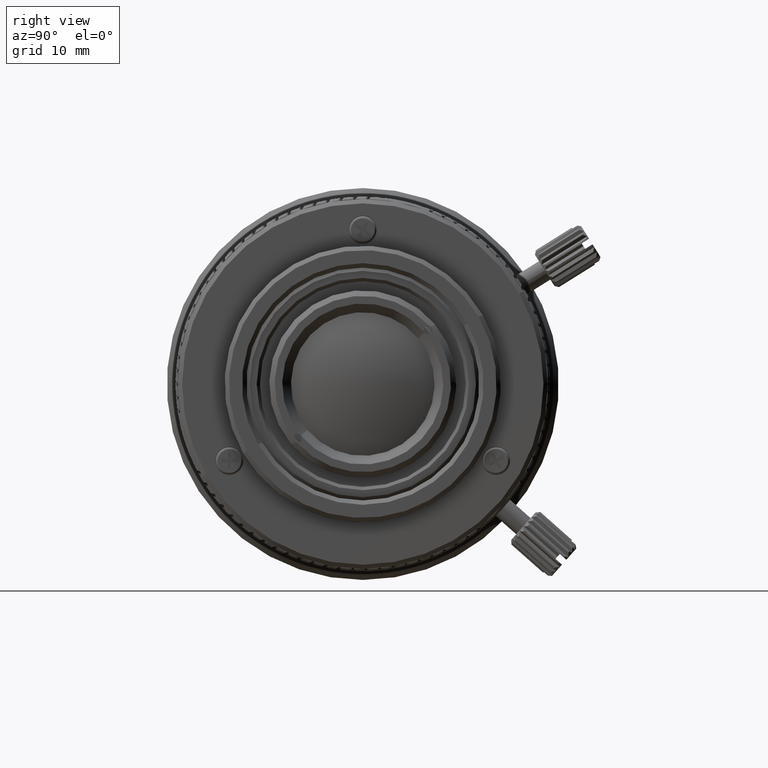
[diagram: clean part render]
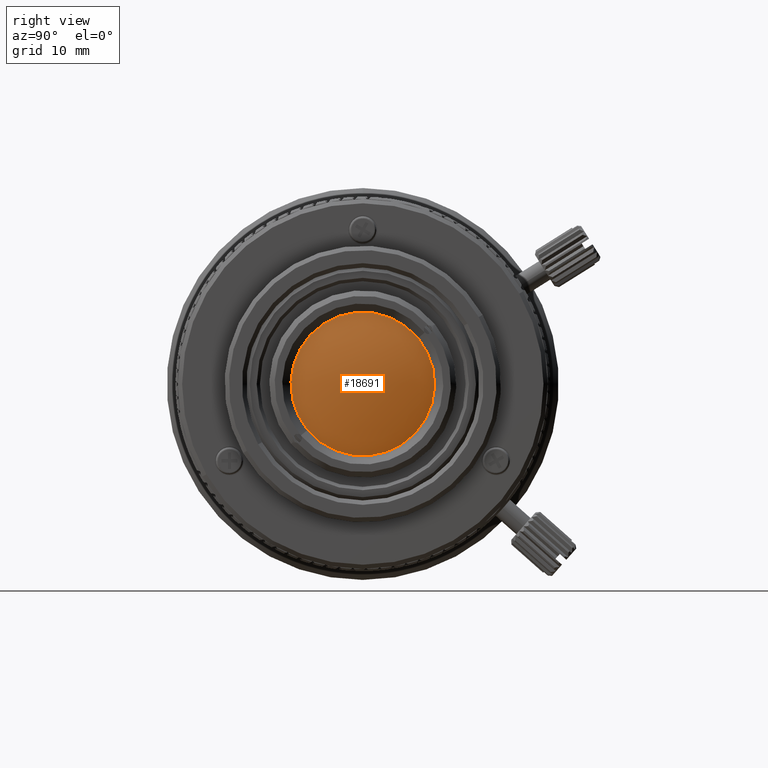
[diagram: same view with one face highlighted and labeled with its STEP entity id]
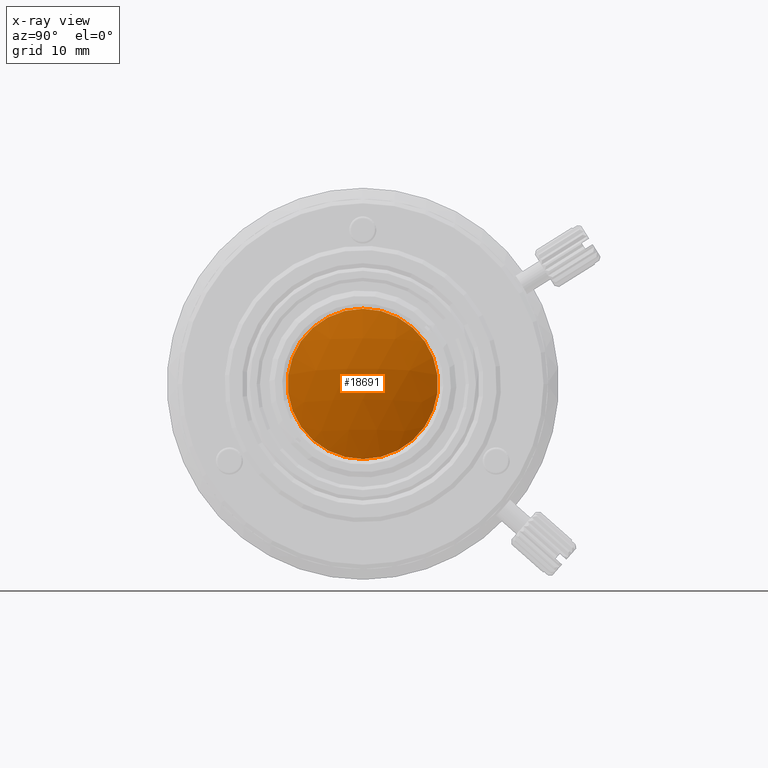
[diagram: x-ray of the same camera — body ghosted, the highlighted face saturated]
A machine part, right view. The second image highlights one B-rep face of the part: STEP entity #18691.
The next image is the same camera in x-ray: the body ghosted, the highlighted face saturated — about 0% of this face is hidden behind the body in this view.
In plain terms, the highlighted spherical surface has radius 20.838 mm.
Its self-contained STEP definition (entity closure, byte-faithful):
#294 = CARTESIAN_POINT ( 'NONE',  ( 25.05236668439066605, -4.199548021634699395E-26, 6.905955823439742680 ) ) ;
#2716 = VERTEX_POINT ( 'NONE', #4195 ) ;
#2982 = DIRECTION ( 'NONE',  ( 0.3333232157569925302, -1.164444844915242181E-15, -0.9428126186244101259 ) ) ;
#4195 = CARTESIAN_POINT ( 'NONE',  ( 25.05236668439066605, 8.514942143710034217E-16, -6.905955823439742680 ) ) ;
#4365 = AXIS2_PLACEMENT_3D ( 'NONE', #13982, #2982, #62574 ) ;
#5334 = CIRCLE ( 'NONE', #67921, 6.905955823439742680 ) ;
#10550 = EDGE_CURVE ( 'NONE', #2716, #61755, #14603, .T. ) ;
#13982 = CARTESIAN_POINT ( 'NONE',  ( 5.391999999999979920, 1.301042606940609916E-15, 1.864745337309942572E-14 ) ) ;
#14388 = CARTESIAN_POINT ( 'NONE',  ( 25.05236668439066605, -4.199548021634699395E-26, -8.239936512519225898E-19 ) ) ;
#14603 = CIRCLE ( 'NONE', #58398, 6.905955823439742680 ) ;
#17140 = ORIENTED_EDGE ( 'NONE', *, *, #40832, .F. ) ;
#18691 = ADVANCED_FACE ( 'NONE', ( #51574 ), #67674, .T. ) ;
#26446 = CARTESIAN_POINT ( 'NONE',  ( 25.05236668439066605, -4.199548021634699395E-26, -8.239936512519225898E-19 ) ) ;
#40832 = EDGE_CURVE ( 'NONE', #61755, #2716, #5334, .T. ) ;
#42938 = DIRECTION ( 'NONE',  ( 0.000000000000000000, 0.000000000000000000, 1.000000000000000000 ) ) ;
#48890 = DIRECTION ( 'NONE',  ( -1.000000000000000000, 0.000000000000000000, 0.000000000000000000 ) ) ;
#50346 = DIRECTION ( 'NONE',  ( -1.000000000000000000, 0.000000000000000000, 0.000000000000000000 ) ) ;
#51574 = FACE_OUTER_BOUND ( 'NONE', #57241, .T. ) ;
#57241 = EDGE_LOOP ( 'NONE', ( #17140, #62426 ) ) ;
#58398 = AXIS2_PLACEMENT_3D ( 'NONE', #26446, #50346, #42938 ) ;
#61755 = VERTEX_POINT ( 'NONE', #294 ) ;
#62426 = ORIENTED_EDGE ( 'NONE', *, *, #10550, .F. ) ;
#62574 = DIRECTION ( 'NONE',  ( 0.9428126186244101259, -6.787100422200455025E-15, 0.3333232157569925302 ) ) ;
#66923 = DIRECTION ( 'NONE',  ( 0.000000000000000000, 0.000000000000000000, 1.000000000000000000 ) ) ;
#67674 = SPHERICAL_SURFACE ( 'NONE', #4365, 20.83800000000000807 ) ;
#67921 = AXIS2_PLACEMENT_3D ( 'NONE', #14388, #48890, #66923 ) ;